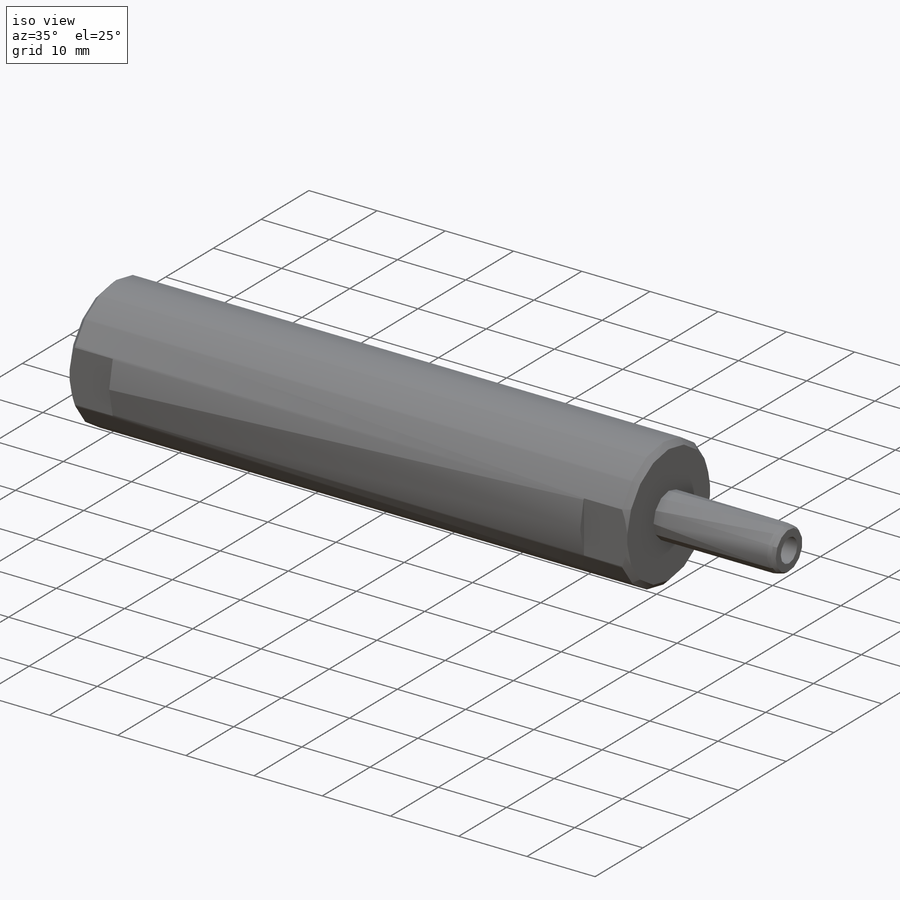
[diagram: iso view]
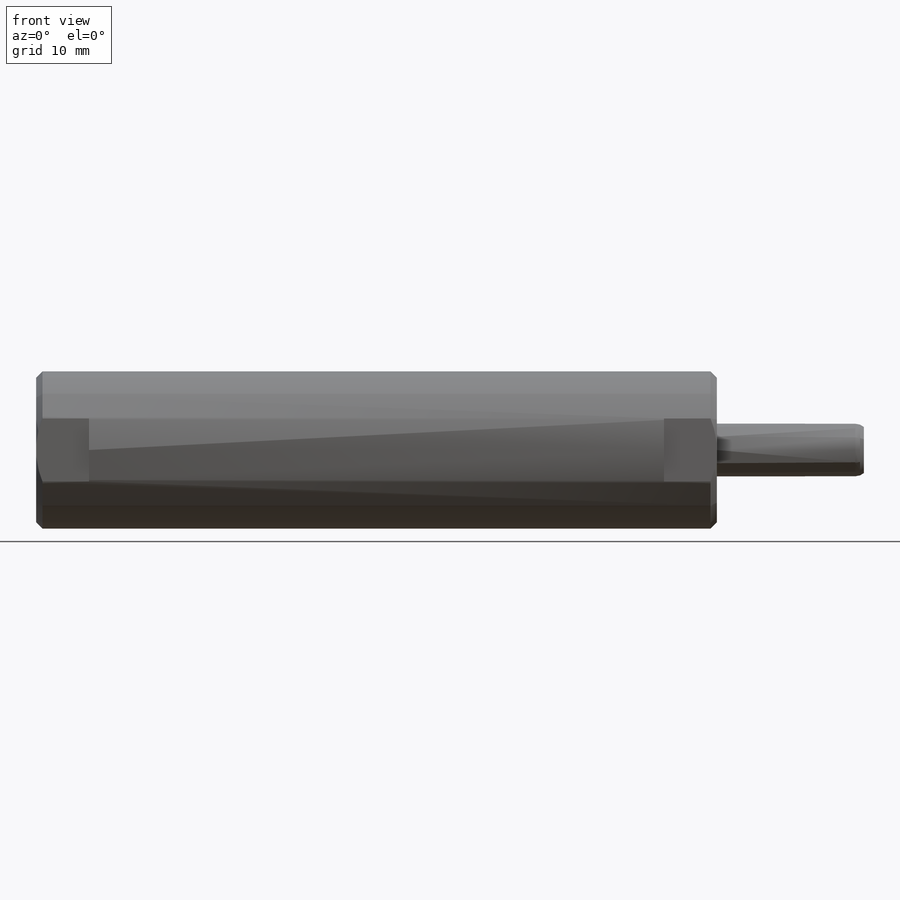
[diagram: front view]
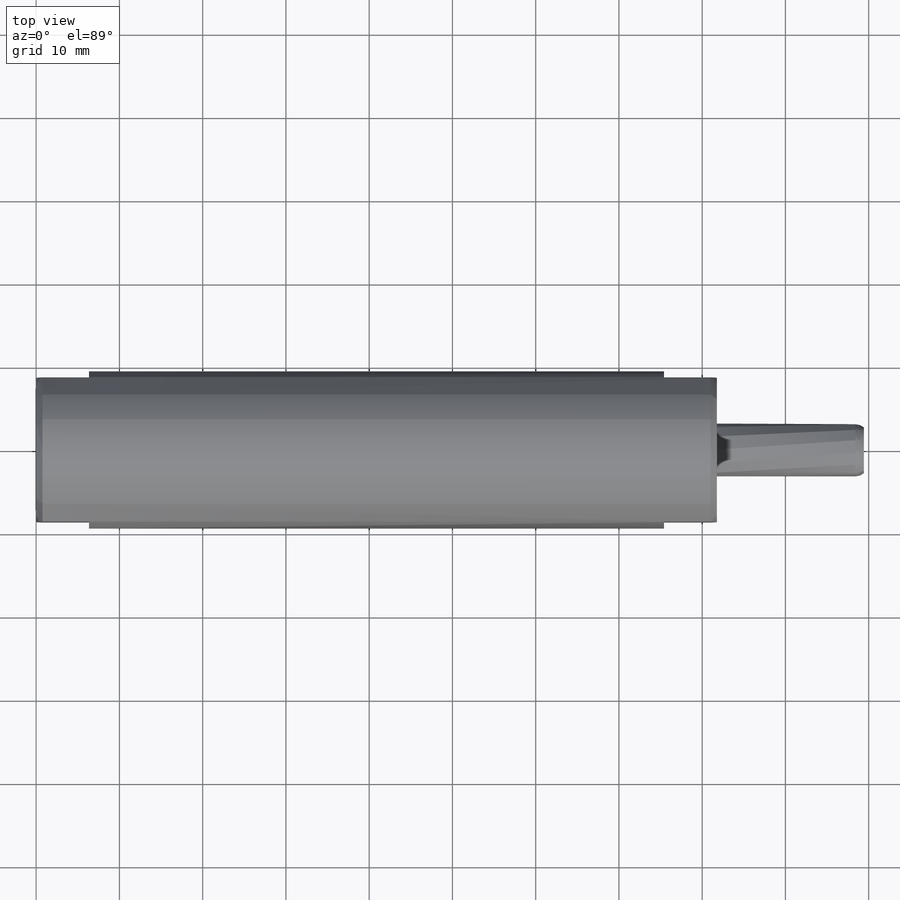
[diagram: top view]
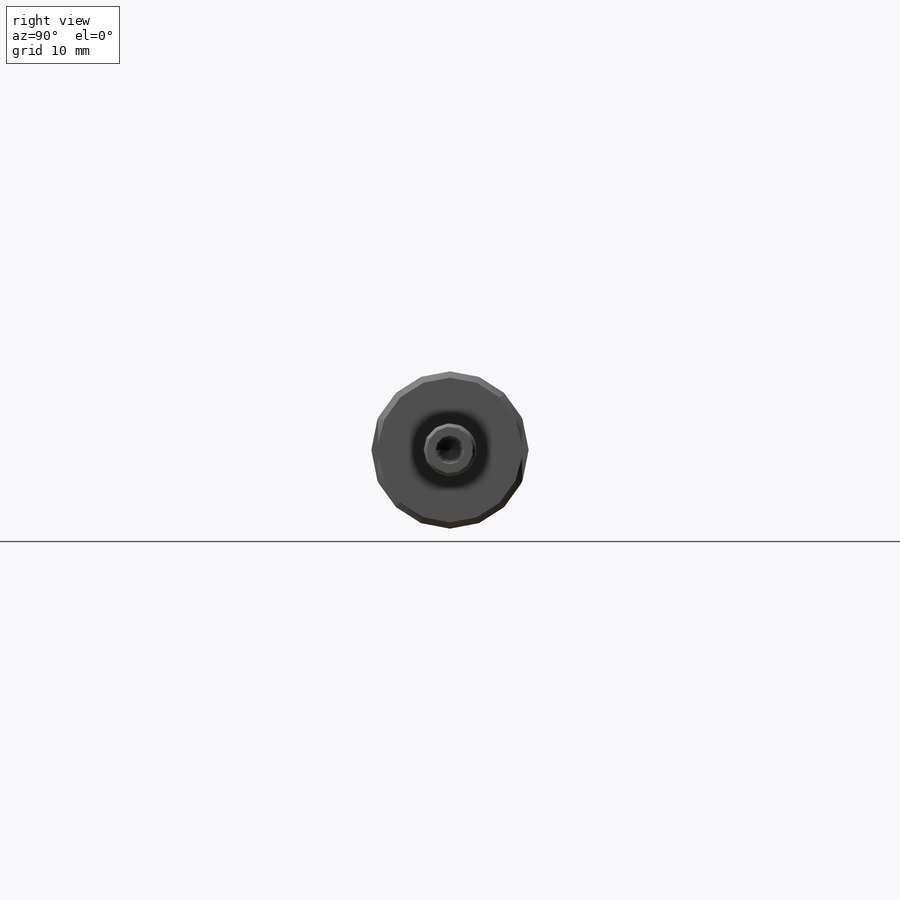
[diagram: right view]
SOLIDWORKS PART (.sldprt)
format: sldprt  version: not decoded by parser v0  size: 169,472 bytes
history: native  units: mm
features: sketch x5, cut_revolve x2, cut_extrude x2, material x1, plane x1, revolve x1, chamfer x1 (+13 scaffold rows collapsed)
feature tree (26):
  scaffold x13  (default folders/planes/origin — collapsed)
  material  "Alloy Steel"
  plane  "Plane1"
  sketch  "Sketch1"  dims[c1.D6=1.524mm c1.D1=18.8976mm c1.D2=~1.077631mm c2.D2=45.0deg c2.D3=0.762mm c2.D4=6.35mm c2.D5=1.016mm c2.D7=17.653mm c2.D8=81.7626mm]
  revolve  "Revolve1"  Angle=360deg
  sketch  "Sketch2"
  cut_revolve  "Cut-Revolve1"  Angle=360deg
  sketch  "Sketch3"  dims[c1.D1=3.4544mm c1.D2=6.35mm c1.D3=~2.015009mm c2.D3=59.0deg]
  cut_revolve  "Cut-Revolve2"  Angle=360deg
  chamfer  "Chamfer1"  Distance=0.762mm Angle=45deg
  sketch  "Sketch5"  dims[c1.D1=~5.58212mm c2.D1=90.0deg c2.D2=6.35mm c2.D3=17.3228mm]
  cut_extrude  "Cut-Extrude1"  [1 undecoded]
  sketch  "Sketch6"  dims[D1=6.35mm D2=17.3228mm]
  cut_extrude  "Cut-Extrude2"  [1 undecoded]
decode coverage: 8 of 11 modeling features carry decoded parameters
note: ~ marks probable driven/reference dimensions
note: 2 parameter values undecoded
note: suppression state not decoded; provenance and decode notes live in map.json
